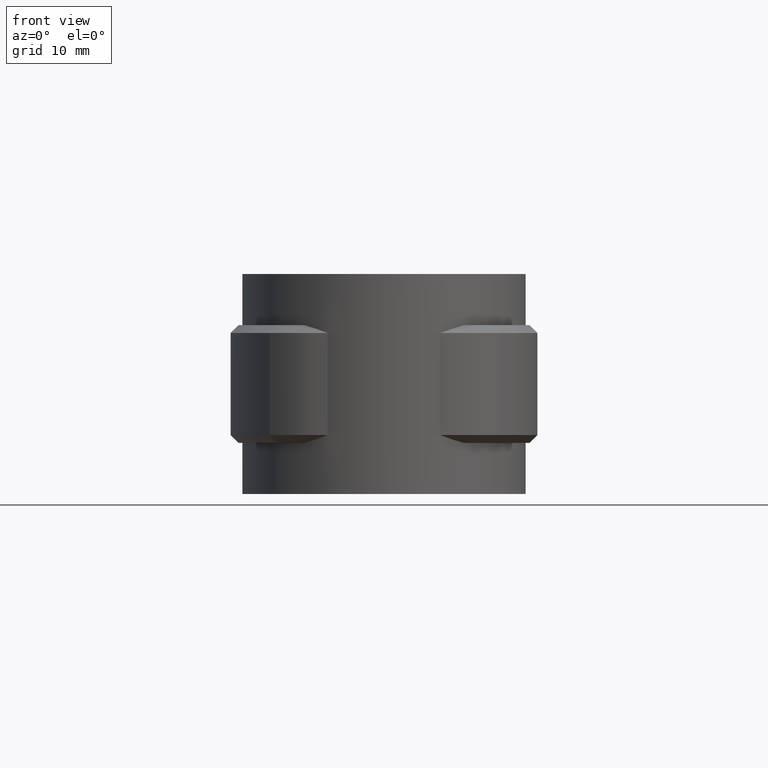
[diagram: clean part render]
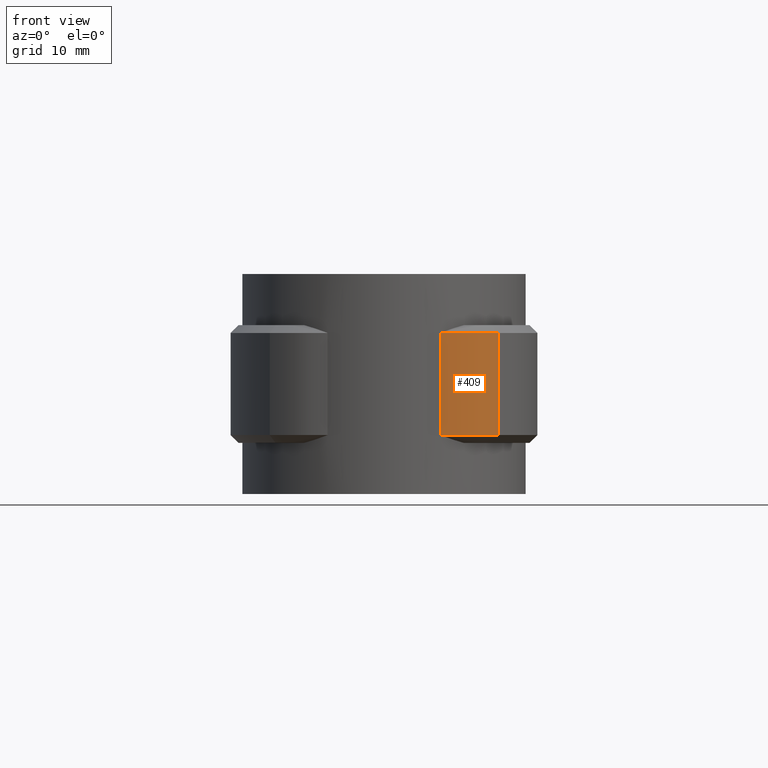
[diagram: same view with one face highlighted and labeled with its STEP entity id]
A machine part, front view. The second image highlights one B-rep face of the part: STEP entity #409.
In plain terms, the highlighted cylindrical surface (partial cylindrical patch) has radius 10.6 mm, axis along (0, 0, -1).
Its self-contained STEP definition (entity closure, byte-faithful):
#409 = ADVANCED_FACE( '', ( #703 ), #704, .T. );
#703 = FACE_OUTER_BOUND( '', #1545, .T. );
#704 = CYLINDRICAL_SURFACE( '', #1546, 10.6000000000000 );
#1545 = EDGE_LOOP( '', ( #3636, #3637, #3638, #3639 ) );
#1546 = AXIS2_PLACEMENT_3D( '', #3640, #3641, #3642 );
#3636 = ORIENTED_EDGE( '', *, *, #4646, .T. );
#3637 = ORIENTED_EDGE( '', *, *, #4632, .T. );
#3638 = ORIENTED_EDGE( '', *, *, #4618, .F. );
#3639 = ORIENTED_EDGE( '', *, *, #4647, .T. );
#3640 = CARTESIAN_POINT( '', ( 6.65677286678762, -5.96000000000000, -20.0000000000000 ) );
#3641 = DIRECTION( '', ( 0.000000000000000, 0.000000000000000, -1.00000000000000 ) );
#3642 = DIRECTION( '', ( 0.261069874584080, 0.965319905826381, 0.000000000000000 ) );
#4618 = EDGE_CURVE( '', #5326, #5328, #5329, .T. );
#4632 = EDGE_CURVE( '', #5348, #5328, #5352, .F. );
#4646 = EDGE_CURVE( '', #5353, #5348, #5370, .T. );
#4647 = EDGE_CURVE( '', #5326, #5353, #5371, .T. );
#5326 = VERTEX_POINT( '', #7640 );
#5328 = VERTEX_POINT( '', #7645 );
#5329 = LINE( '', #7646, #7647 );
#5348 = VERTEX_POINT( '', #7678 );
#5352 = CIRCLE( '', #7683, 10.6000000000000 );
#5353 = VERTEX_POINT( '', #7684 );
#5370 = LINE( '', #7704, #7705 );
#5371 = CIRCLE( '', #7706, 10.6000000000000 );
#7640 = CARTESIAN_POINT( '', ( 7.17238060487721, -16.5474524159697, -19.0000000000000 ) );
#7645 = CARTESIAN_POINT( '', ( 7.17238060487721, -16.5474524159697, -6.00000000000000 ) );
#7646 = CARTESIAN_POINT( '', ( 7.17238060487721, -16.5474524159697, -12.5000000000000 ) );
#7647 = VECTOR( '', #8505, 1000.00000000000 );
#7678 = CARTESIAN_POINT( '', ( 14.5540076052262, -13.0306211527700, -6.00000000000000 ) );
#7683 = AXIS2_PLACEMENT_3D( '', #8528, #8529, #8530 );
#7684 = CARTESIAN_POINT( '', ( 14.5540076052262, -13.0306211527700, -19.0000000000000 ) );
#7704 = CARTESIAN_POINT( '', ( 14.5540076052262, -13.0306211527700, -20.0000000000000 ) );
#7705 = VECTOR( '', #8564, 1000.00000000000 );
#7706 = AXIS2_PLACEMENT_3D( '', #8565, #8566, #8567 );
#8505 = DIRECTION( '', ( 0.000000000000000, 0.000000000000000, 1.00000000000000 ) );
#8528 = CARTESIAN_POINT( '', ( 6.65677286678762, -5.96000000000000, -6.00000000000000 ) );
#8529 = DIRECTION( '', ( 0.000000000000000, 0.000000000000000, 1.00000000000000 ) );
#8530 = DIRECTION( '', ( 1.00000000000000, 0.000000000000000, 0.000000000000000 ) );
#8564 = DIRECTION( '', ( 0.000000000000000, 0.000000000000000, 1.00000000000000 ) );
#8565 = CARTESIAN_POINT( '', ( 6.65677286678762, -5.96000000000000, -19.0000000000000 ) );
#8566 = DIRECTION( '', ( 0.000000000000000, 0.000000000000000, 1.00000000000000 ) );
#8567 = DIRECTION( '', ( 1.00000000000000, 0.000000000000000, 0.000000000000000 ) );